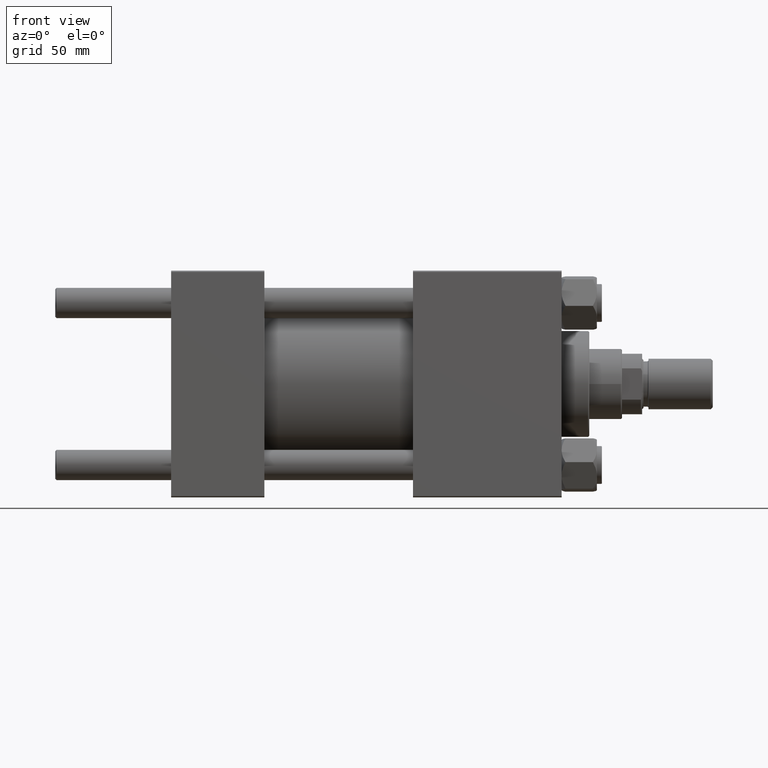
[diagram: clean part render]
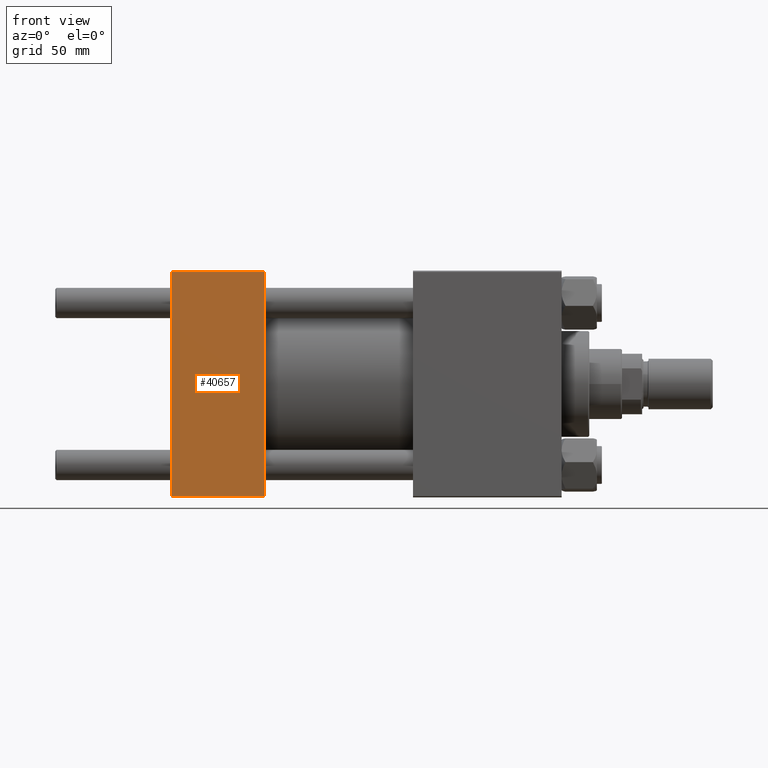
[diagram: same view with one face highlighted and labeled with its STEP entity id]
A machine part, front view. The second image highlights one B-rep face of the part: STEP entity #40657.
In plain terms, the highlighted planar face has unit normal (0, 1, 0).
Its self-contained STEP definition (entity closure, byte-faithful):
#1425 = VECTOR ( 'NONE', #50185, 1000.000000000000000 ) ;
#2126 = EDGE_CURVE ( 'NONE', #6636, #25835, #12205, .T. ) ;
#2243 = CARTESIAN_POINT ( 'NONE',  ( 37.00000000000000000, -45.00000000000000711, 45.00000000000000000 ) ) ;
#3760 = CARTESIAN_POINT ( 'NONE',  ( 0.000000000000000000, -45.00000000000000711, 45.00000000000000000 ) ) ;
#6077 = DIRECTION ( 'NONE',  ( 0.000000000000000000, -7.709882115452478166E-17, 1.000000000000000000 ) ) ;
#6295 = CARTESIAN_POINT ( 'NONE',  ( 0.000000000000000000, -45.00000000000000711, 44.49999999999997158 ) ) ;
#6636 = VERTEX_POINT ( 'NONE', #49933 ) ;
#8524 = ORIENTED_EDGE ( 'NONE', *, *, #25882, .F. ) ;
#8660 = EDGE_CURVE ( 'NONE', #14847, #38637, #20089, .T. ) ;
#10929 = LINE ( 'NONE', #3760, #42612 ) ;
#10943 = ORIENTED_EDGE ( 'NONE', *, *, #38346, .T. ) ;
#11768 = ORIENTED_EDGE ( 'NONE', *, *, #8660, .T. ) ;
#12205 = LINE ( 'NONE', #38708, #1425 ) ;
#12212 = DIRECTION ( 'NONE',  ( -1.000000000000000000, 0.000000000000000000, 0.000000000000000000 ) ) ;
#14847 = VERTEX_POINT ( 'NONE', #22710 ) ;
#17851 = EDGE_LOOP ( 'NONE', ( #10943, #45935, #8524, #11768 ) ) ;
#20089 = LINE ( 'NONE', #47132, #23512 ) ;
#22457 = DIRECTION ( 'NONE',  ( 0.000000000000000000, 7.709882115452476934E-17, -1.000000000000000000 ) ) ;
#22710 = CARTESIAN_POINT ( 'NONE',  ( 37.00000000000000000, -45.00000000000000711, 44.49999999999997158 ) ) ;
#23512 = VECTOR ( 'NONE', #12212, 1000.000000000000000 ) ;
#25835 = VERTEX_POINT ( 'NONE', #46153 ) ;
#25882 = EDGE_CURVE ( 'NONE', #14847, #25835, #26535, .T. ) ;
#26084 = VECTOR ( 'NONE', #22457, 1000.000000000000000 ) ;
#26535 = LINE ( 'NONE', #41601, #26084 ) ;
#31288 = DIRECTION ( 'NONE',  ( 0.000000000000000000, 7.709882115452476934E-17, -1.000000000000000000 ) ) ;
#32829 = FACE_OUTER_BOUND ( 'NONE', #17851, .T. ) ;
#36380 = DIRECTION ( 'NONE',  ( -0.000000000000000000, 1.000000000000000000, 7.709882115452478166E-17 ) ) ;
#38346 = EDGE_CURVE ( 'NONE', #38637, #6636, #10929, .T. ) ;
#38637 = VERTEX_POINT ( 'NONE', #6295 ) ;
#38708 = CARTESIAN_POINT ( 'NONE',  ( 37.00000000000000000, -45.00000000000000000, -44.49999999999998579 ) ) ;
#40364 = AXIS2_PLACEMENT_3D ( 'NONE', #2243, #36380, #6077 ) ;
#40657 = ADVANCED_FACE ( 'NONE', ( #32829 ), #40989, .F. ) ;
#40989 = PLANE ( 'NONE',  #40364 ) ;
#41601 = CARTESIAN_POINT ( 'NONE',  ( 37.00000000000000000, -45.00000000000000711, 45.00000000000000000 ) ) ;
#42612 = VECTOR ( 'NONE', #31288, 1000.000000000000000 ) ;
#45935 = ORIENTED_EDGE ( 'NONE', *, *, #2126, .T. ) ;
#46153 = CARTESIAN_POINT ( 'NONE',  ( 37.00000000000000000, -45.00000000000000000, -44.49999999999995737 ) ) ;
#47132 = CARTESIAN_POINT ( 'NONE',  ( 37.00000000000000000, -45.00000000000000711, 44.49999999999997158 ) ) ;
#49933 = CARTESIAN_POINT ( 'NONE',  ( 0.000000000000000000, -45.00000000000000000, -44.49999999999995737 ) ) ;
#50185 = DIRECTION ( 'NONE',  ( 1.000000000000000000, 0.000000000000000000, 0.000000000000000000 ) ) ;